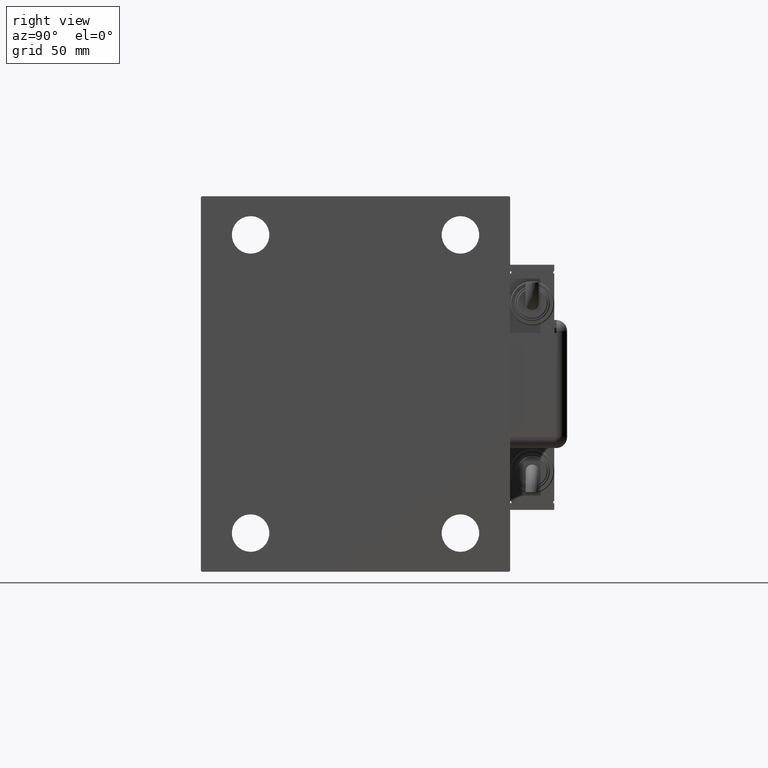
[diagram: clean part render]
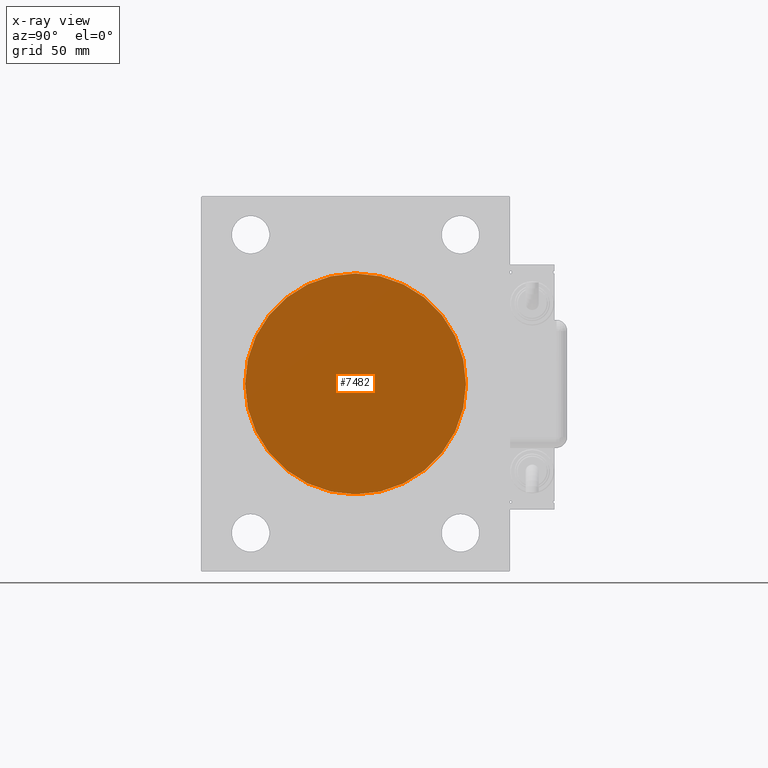
[diagram: x-ray — body ghosted, one internal face saturated and labeled with its STEP entity id]
A machine part, right view, then the same camera in x-ray: the body is ghosted and one INTERNAL B-rep face — a face not visible from any outside direction — is saturated and labeled: STEP entity #7482.
In plain terms, the highlighted planar face has unit normal (-1, 0, 0).
Its self-contained STEP definition (entity closure, byte-faithful):
#2847 = CARTESIAN_POINT ( 'NONE',  ( 51.00000000000000000, 0.000000000000000000, 0.000000000000000000 ) ) ;
#3470 = CIRCLE ( 'NONE', #12449, 50.00000000000000000 ) ;
#7482 = ADVANCED_FACE ( 'NONE', ( #39822 ), #35783, .T. ) ;
#7996 = CIRCLE ( 'NONE', #35839, 50.00000000000000000 ) ;
#8641 = DIRECTION ( 'NONE',  ( 0.000000000000000000, 0.000000000000000000, 1.000000000000000000 ) ) ;
#12449 = AXIS2_PLACEMENT_3D ( 'NONE', #38512, #37576, #8641 ) ;
#13470 = ORIENTED_EDGE ( 'NONE', *, *, #16770, .T. ) ;
#16192 = CARTESIAN_POINT ( 'NONE',  ( 51.00000000000000000, 0.000000000000000000, 0.000000000000000000 ) ) ;
#16770 = EDGE_CURVE ( 'NONE', #46593, #41557, #3470, .T. ) ;
#20031 = CARTESIAN_POINT ( 'NONE',  ( 51.00000000000000000, 0.000000000000000000, 50.00000000000000000 ) ) ;
#21785 = DIRECTION ( 'NONE',  ( 0.000000000000000000, 0.000000000000000000, 1.000000000000000000 ) ) ;
#27123 = DIRECTION ( 'NONE',  ( -1.000000000000000000, 0.000000000000000000, 0.000000000000000000 ) ) ;
#35172 = DIRECTION ( 'NONE',  ( -1.000000000000000000, 0.000000000000000000, 0.000000000000000000 ) ) ;
#35783 = PLANE ( 'NONE',  #36894 ) ;
#35839 = AXIS2_PLACEMENT_3D ( 'NONE', #2847, #27123, #50466 ) ;
#36894 = AXIS2_PLACEMENT_3D ( 'NONE', #16192, #35172, #21785 ) ;
#37576 = DIRECTION ( 'NONE',  ( -1.000000000000000000, 0.000000000000000000, 0.000000000000000000 ) ) ;
#38512 = CARTESIAN_POINT ( 'NONE',  ( 51.00000000000000000, 0.000000000000000000, 0.000000000000000000 ) ) ;
#39822 = FACE_OUTER_BOUND ( 'NONE', #40664, .T. ) ;
#40664 = EDGE_LOOP ( 'NONE', ( #13470, #54639 ) ) ;
#41557 = VERTEX_POINT ( 'NONE', #52993 ) ;
#46593 = VERTEX_POINT ( 'NONE', #20031 ) ;
#50466 = DIRECTION ( 'NONE',  ( 0.000000000000000000, 0.000000000000000000, 1.000000000000000000 ) ) ;
#52993 = CARTESIAN_POINT ( 'NONE',  ( 51.00000000000000000, 6.123233995736766085E-15, -50.00000000000000000 ) ) ;
#54639 = ORIENTED_EDGE ( 'NONE', *, *, #55224, .T. ) ;
#55224 = EDGE_CURVE ( 'NONE', #41557, #46593, #7996, .T. ) ;